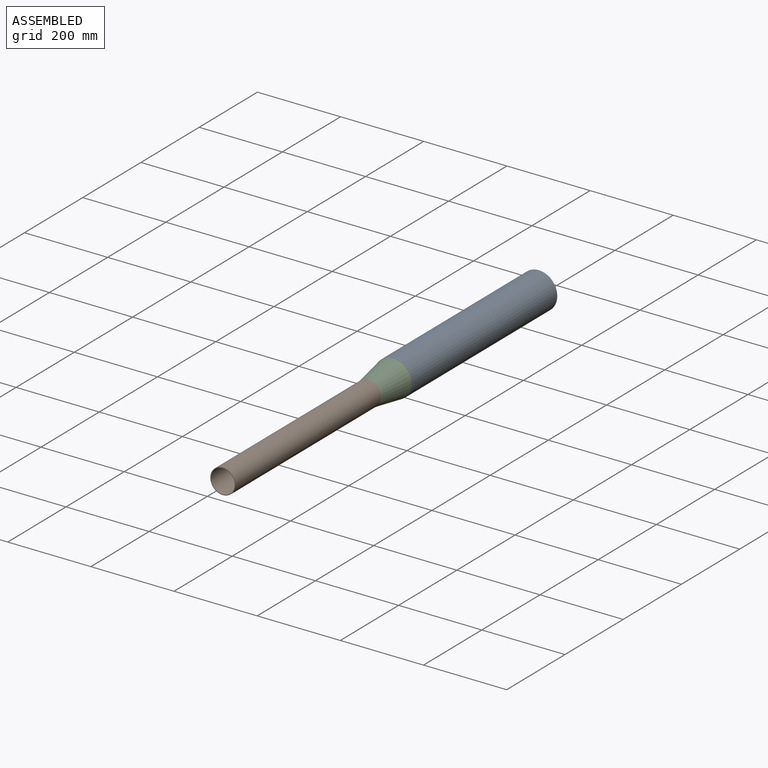
[diagram: assembled view]
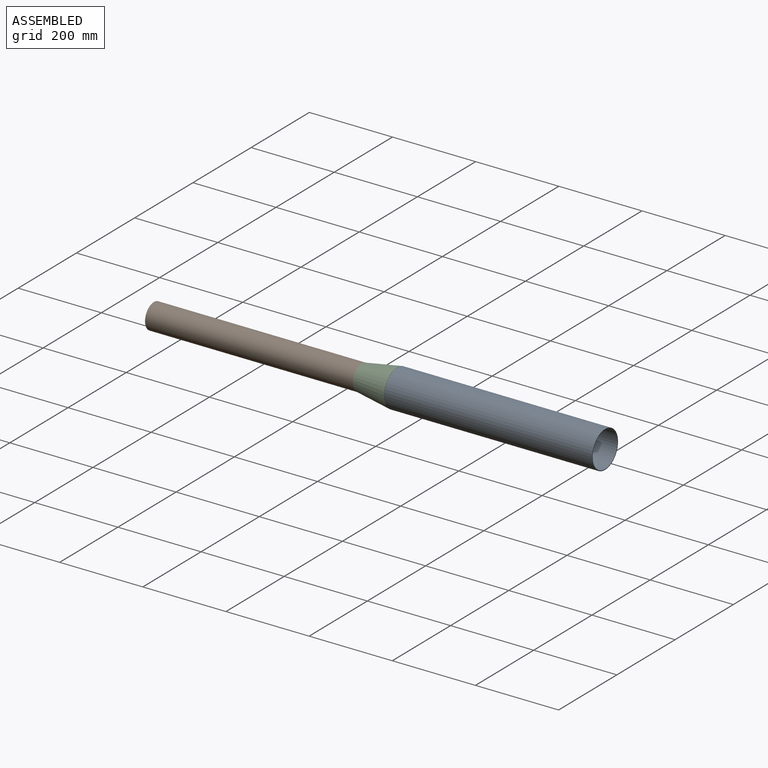
[diagram: assembled view, second angle]
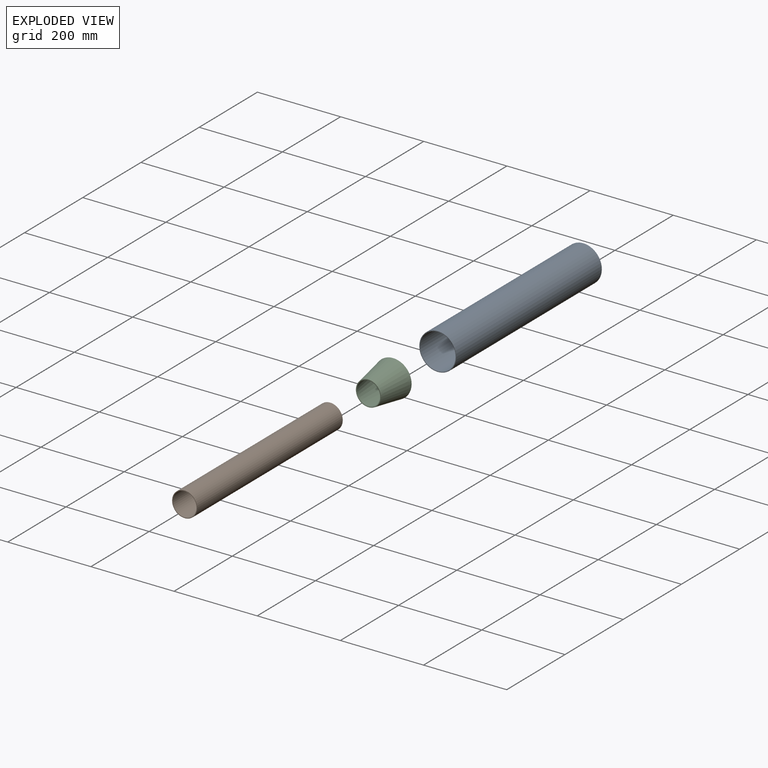
[diagram: exploded view]
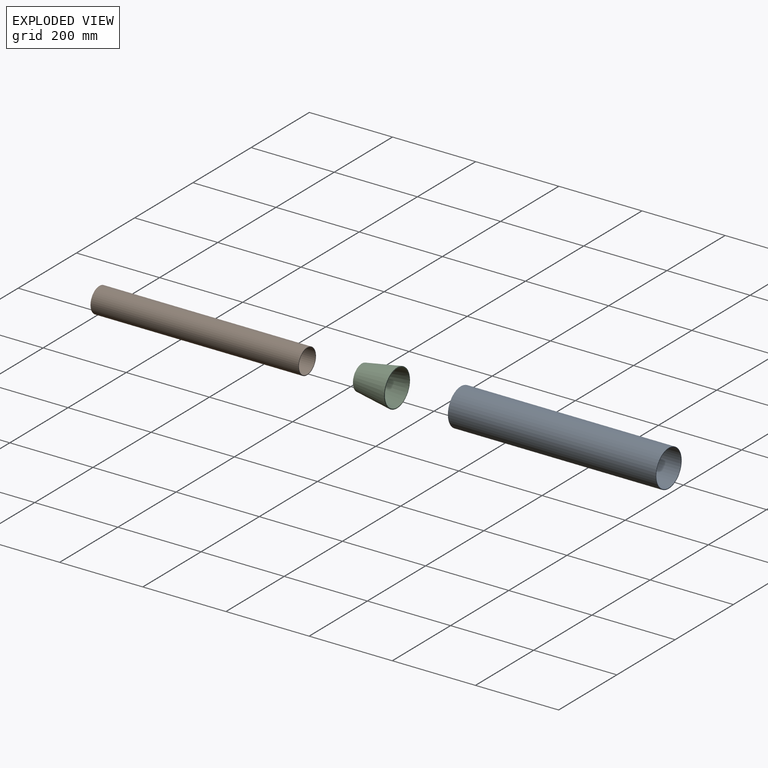
[diagram: exploded view, second angle]
ASSEMBLY  parts=3 mates=2
PART A: 4 faces, bbox 88.9x500x88.9 mm
  f0: cylinder r=42.85mm len=500mm, axis (0,1,0), area 134617.2mm2, adj f2,f3
  f1: cylinder r=44.45mm len=500mm, axis (0,1,0), area 139643.8mm2, adj f2,f3
  f2: plane 88.9x88.9mm, normal (0,-1,0), area 438.8mm2, adj f0,f1
  f3: plane 88.9x88.9mm, normal (0,1,0), area 438.8mm2, adj f0,f1
PART B: 4 faces, bbox 60.3x500x60.3 mm
  f0: cylinder r=28.55mm len=500mm, axis (0,1,0), area 89692.5mm2, adj f2,f3
  f1: cylinder r=30.15mm len=500mm, axis (0,1,0), area 94719mm2, adj f2,f3
  f2: plane 60.3x60.3mm, normal (0,-1,0), area 295.1mm2, adj f0,f1
  f3: plane 60.3x60.3mm, normal (0,1,0), area 295.1mm2, adj f0,f1
PART C: 4 faces, bbox 88.9x88.9x85.3 mm
  f0: cone r=30.15mm half-angle=80.5deg, axis (0,0,1), area 366.5mm2, adj f2,f3
  f1: cone r=44.45mm half-angle=80.5deg, axis (0,0,1), area 546.2mm2, adj f2,f3
  f2: cone r=44.45mm half-angle=9.5deg, axis (0,0,-1), area 20200.8mm2, adj f0,f1
  f3: cone r=42.48mm half-angle=9.5deg, axis (0,0,-1), area 19132.6mm2, adj f0,f1
PLACE A t=(-140.4,-146.63,-814.73)mm
PLACE B rot(axis=(1,0,0),180deg) t=(-140.4,-1231.96,-814.73)mm
PLACE C rot(axis=(1,0,0),90deg) t=(-140.4,-646.96,-814.73)mm
MATE fastened C.f0 <-> A.f0  axis (0,1,0) through (-140.4,-646.63,-814.73)mm
MATE fastened B.f0 <-> C.f0  axis (0,1,0) through (-140.4,-731.96,-814.73)mm
